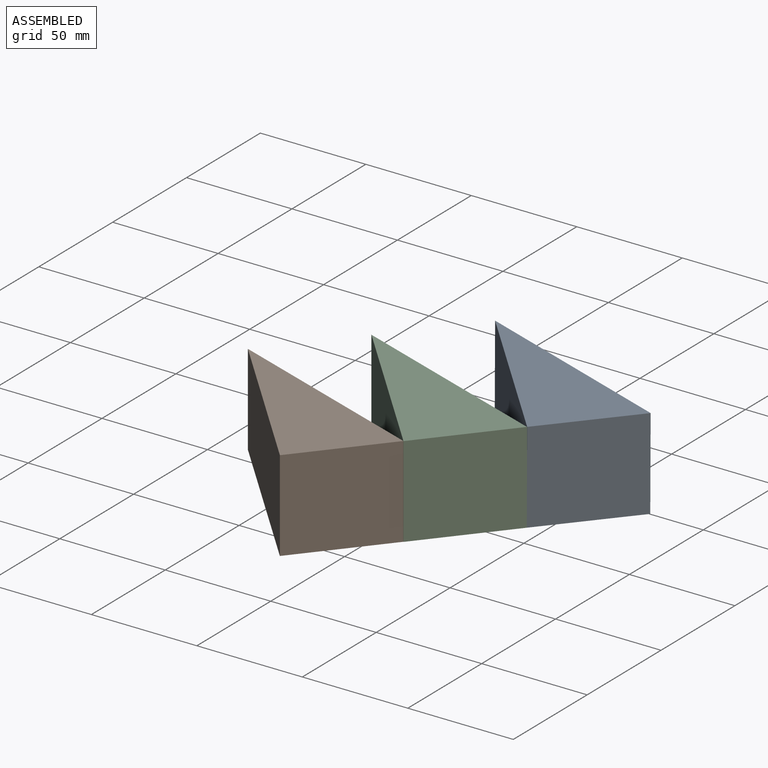
[diagram: assembled view]
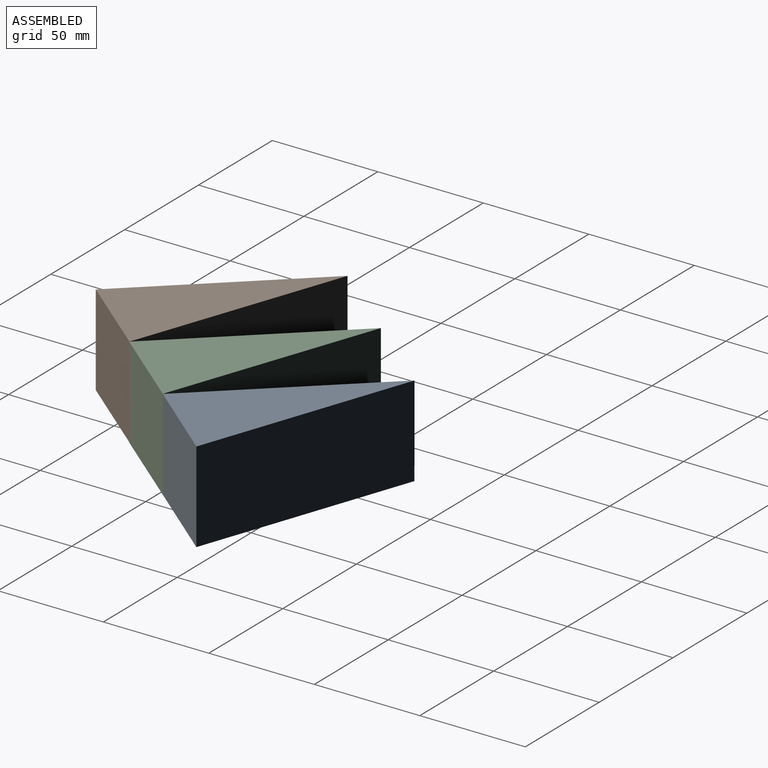
[diagram: assembled view, second angle]
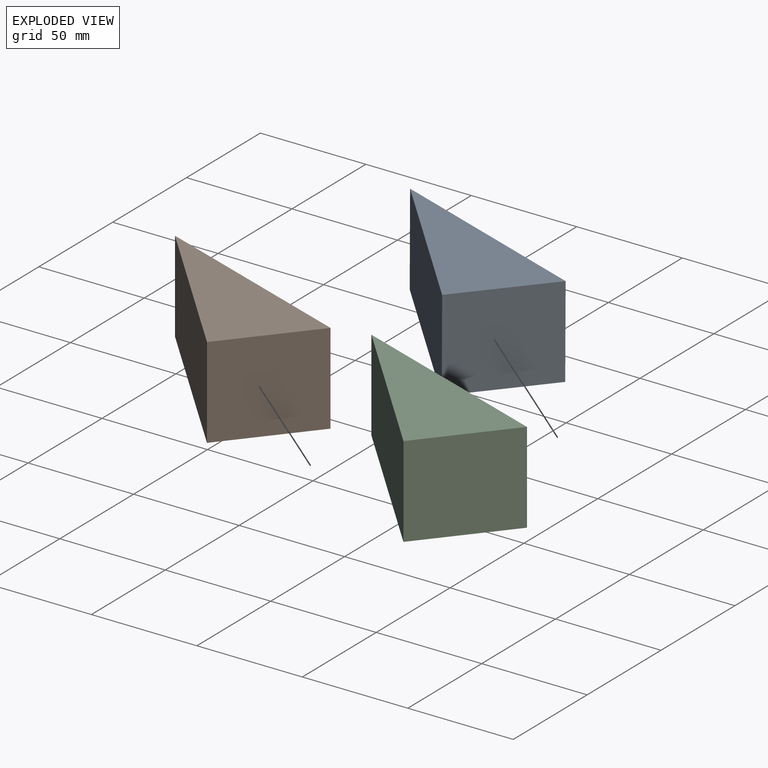
[diagram: exploded view]
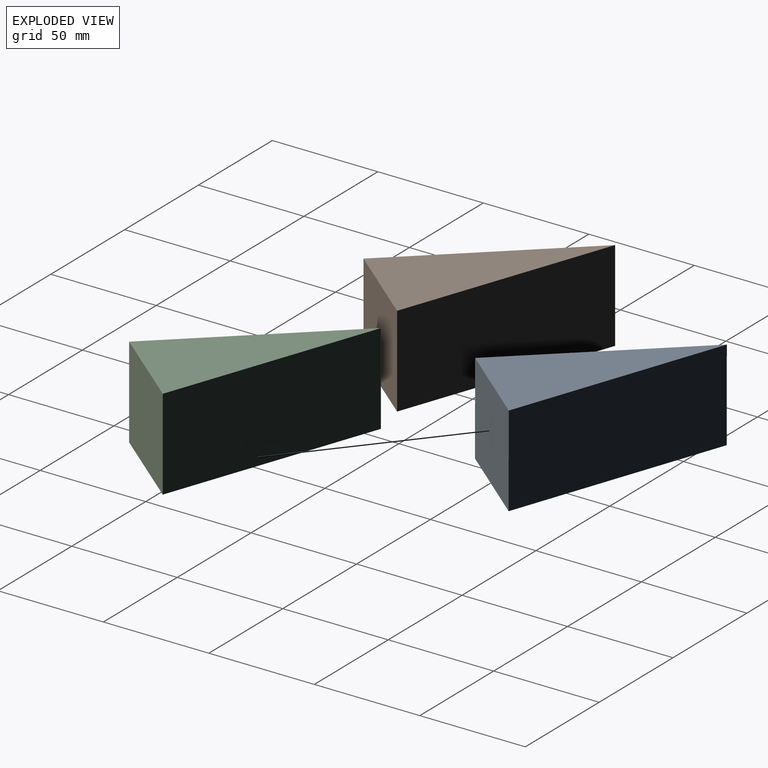
[diagram: exploded view, second angle]
ASSEMBLY  parts=3 mates=5
PART A: 5 faces, bbox 98x72.9x43.2 mm
  f0: plane 98.04x43.18mm, normal (0.33,0.94,0), area 4491.2mm2, adj f1,f2,f3,f4
  f1: plane 72.93x66.25mm, normal (-0.74,-0.67,0), area 4254.5mm2, adj f0,f2,f3,f4
  f2: plane 43.18x38.2mm, normal (0.77,-0.64,0), area 2146mm2, adj f0,f1,f3,f4
  f3: plane 98.04x72.93mm, normal (0,0,1), area 2424.7mm2, adj f0,f1,f2
  f4: plane 98.04x72.93mm, normal (0,0,-1), area 2424.7mm2, adj f0,f1,f2
PART B: same geometry as A
PART C: same geometry as A
PLACE A rot(axis=(-0.77,0.64,0),0.2deg) t=(31.74,38.14,-0.05)mm
PLACE B t=(-31.89,-38.12,0)mm
PLACE C at identity fixed
MATE slider C.f2 <-> B.f2  axis (0.77,-0.64,0) through (15.36,-32.06,21.59)mm
MATE slider B.f2 <-> C.f2  axis (0.77,-0.64,0) through (15.26,-31.98,21.59)mm
MATE revolute A.f2 <-> C.f2  axis (0.77,-0.64,0) through (47.15,6.14,21.59)mm
MATE slider C.f2 <-> B.f2  axis (0.77,-0.64,0) through (15.36,-32.06,21.59)mm
MATE slider B.f2 <-> C.f2  axis (0.77,-0.64,0) through (15.26,-31.98,21.59)mm
